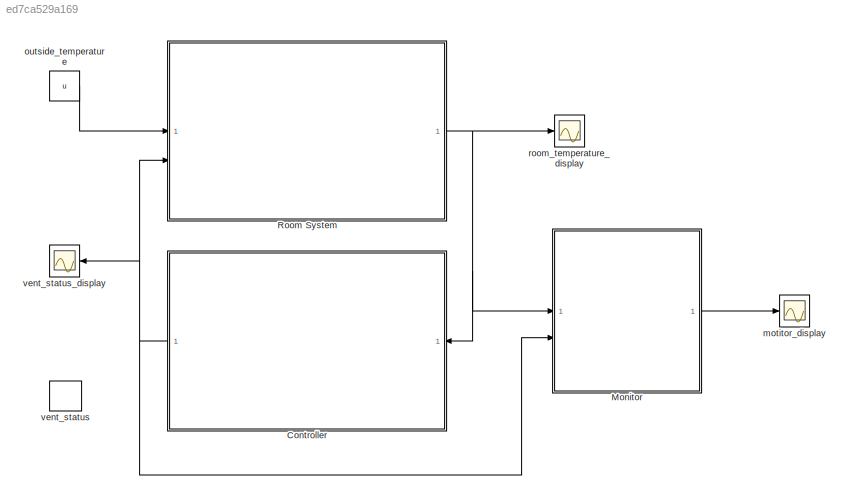
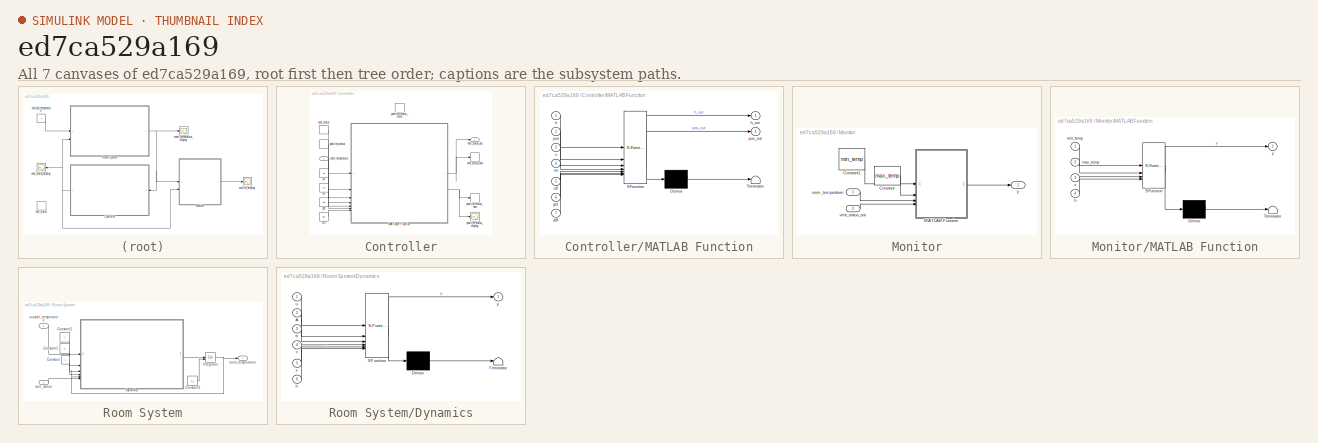
[diagram: thumbnail index - all 7 canvases of the model, root first then tree order]
MODEL slx_ed7ca529a169
KIND model
CONFIG AbsTol = auto
CONFIG EnableMultiTasking = off
CONFIG FixedStep = auto
CONFIG MaxStep = auto
CONFIG MinStep = auto
CONFIG RelTol = 1e-3
CONFIG SampleTimeConstraint = Unconstrained
CONFIG SolverName = VariableStepAuto
CONFIG StartTime = 0.0
CONFIG StopTime = 10
WORKSPACE source: mxarray member
WORKSPACE A = [0 0.3 0.4 0.3 0.3 0 0.5 0 0.4 0.5 0 0.3 ... (16 elements, 4x4)]
WORKSPACE b = [0.3 0.2 0.5 0.4]
WORKSPACE c = [9 7 11 7]
WORKSPACE diff = [1 1 1 1]
WORKSPACE get = [17 17 17 17]
WORKSPACE max_temp = 20
WORKSPACE min_temp = 15
WORKSPACE off = [20 20 20 20]
WORKSPACE on = [19 19 19 19]
WORKSPACE u = 6
WORKSPACE x_0 = [16.5 16.5 16.5 16.5]
BLOCK [SubSystem] Controller
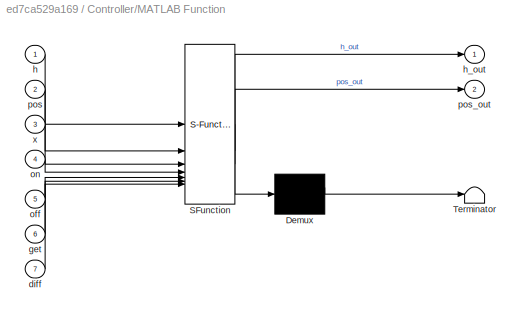
BLOCK [SubSystem] Controller/MATLAB Function
  ErrorFcn = Stateflow.Translate.translate
  PermitHierarchicalResolution = ExplicitOnly
  SFBlockType = MATLAB Function
  TreatAsAtomicUnit = on
BLOCK [Demux] Controller/MATLAB Function/ Demux 
  Outputs = 1
BLOCK [S-Function] Controller/MATLAB Function/ SFunction 
  EnableBusSupport = on
  FunctionName = sf_sfun
  PortCounts = [7 3]
  SFcnIsStateOwnerBlock = off
  SFunctionDeploymentMode = off
  Tag = Stateflow S-Function 1
BLOCK [Terminator] Controller/MATLAB Function/ Terminator 
BLOCK [Inport] Controller/MATLAB Function/diff
  Port = 7
BLOCK [Inport] Controller/MATLAB Function/get
  Port = 6
BLOCK [Inport] Controller/MATLAB Function/h
BLOCK [Outport] Controller/MATLAB Function/h_out
BLOCK [Inport] Controller/MATLAB Function/off
  Port = 5
BLOCK [Inport] Controller/MATLAB Function/on
  Port = 4
BLOCK [Inport] Controller/MATLAB Function/pos
  Port = 2
BLOCK [Outport] Controller/MATLAB Function/pos_out
  Port = 2
BLOCK [Inport] Controller/MATLAB Function/x
  Port = 3
BLOCK [Constant] Controller/diff
  Value = diff
BLOCK [Constant] Controller/get
  Value = get
BLOCK [Constant] Controller/off
  Value = off
BLOCK [Constant] Controller/on
  Value = on
BLOCK [DataStoreRead] Controller/position_status
  DataStoreName = pos
  IndexOptions = Index vector (dialog)
  Indices = 1
  OutputSizes = 1
BLOCK [Scope] Controller/position_status_display
  Floating = off
  NumInputPorts = 1
  ScopeSpecificationString = Simulink.scopes.TimeScopeBlockCfg('CurrentConfiguration', extmgr.ConfigurationSet(extmgr.Configuration('Core','General UI',true),extmgr.Configuration('Core','Source UI',true),extmgr.Configuration('Sources','WiredSimulink',true),extmgr.Configuration('Visuals','Time Domain',true,'SerializedDisplays',{struct('MinYLimReal','-0.125','MaxYLimReal','1.125','YLabelReal','','MinYLimMag','0.00000','MaxYLimM...<+1494ch>
BLOCK [DataStoreWrite] Controller/position_status_new
  DataStoreName = pos
  IndexOptions = Index vector (dialog)
  Indices = 1
  OutputSizes = 1
BLOCK [DataStoreMemory] Controller/position_status_store
  DataStoreName = pos
  InitialValue = [0;1;1;0]
  ShowAdditionalParam = off
  WriteAfterWriteMsg = warning
BLOCK [Inport] Controller/room_temperature
BLOCK [DataStoreRead] Controller/vent_status
  DataStoreName = h
  IndexOptions = Index vector (dialog)
  Indices = 1
  OutputSizes = 1
BLOCK [DataStoreWrite] Controller/vent_status_new
  DataStoreName = h
  IndexOptions = Index vector (dialog)
  Indices = 1
  OutputSizes = 1
BLOCK [Outport] Controller/vent_status_out
BLOCK [SubSystem] Monitor
BLOCK [Constant] Monitor/Constant
  Value = max_temp
BLOCK [Constant] Monitor/Constant1
  Value = min_temp
BLOCK [SubSystem] Monitor/MATLAB Function
  ErrorFcn = Stateflow.Translate.translate
  PermitHierarchicalResolution = ExplicitOnly
  SFBlockType = MATLAB Function
  TreatAsAtomicUnit = on
BLOCK [Demux] Monitor/MATLAB Function/ Demux 
  Outputs = 1
BLOCK [S-Function] Monitor/MATLAB Function/ SFunction 
  EnableBusSupport = on
  FunctionName = sf_sfun
  PortCounts = [4 2]
  SFcnIsStateOwnerBlock = off
  SFunctionDeploymentMode = off
  Tag = Stateflow S-Function 3
BLOCK [Terminator] Monitor/MATLAB Function/ Terminator 
BLOCK [Inport] Monitor/MATLAB Function/h
  Port = 4
BLOCK [Inport] Monitor/MATLAB Function/max_temp
  Port = 2
BLOCK [Inport] Monitor/MATLAB Function/min_temp
BLOCK [Inport] Monitor/MATLAB Function/x
  Port = 3
BLOCK [Outport] Monitor/MATLAB Function/y
BLOCK [Inport] Monitor/room_temperature
BLOCK [Inport] Monitor/vent_status_out
  Port = 2
BLOCK [Outport] Monitor/y
BLOCK [SubSystem] Room System
BLOCK [Constant] Room System/Constant
  Value = c
BLOCK [Constant] Room System/Constant1
  Value = b
BLOCK [Constant] Room System/Constant2
  Value = A
BLOCK [Constant] Room System/Constant3
  Value = x_0
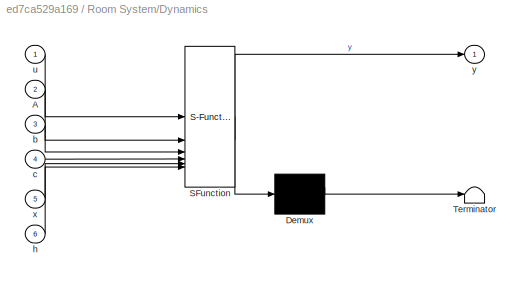
BLOCK [SubSystem] Room System/Dynamics
  ErrorFcn = Stateflow.Translate.translate
  PermitHierarchicalResolution = ExplicitOnly
  SFBlockType = MATLAB Function
  TreatAsAtomicUnit = on
BLOCK [Demux] Room System/Dynamics/ Demux 
  Outputs = 1
BLOCK [S-Function] Room System/Dynamics/ SFunction 
  EnableBusSupport = on
  FunctionName = sf_sfun
  PortCounts = [6 2]
  SFcnIsStateOwnerBlock = off
  SFunctionDeploymentMode = off
  Tag = Stateflow S-Function 2
BLOCK [Terminator] Room System/Dynamics/ Terminator 
BLOCK [Inport] Room System/Dynamics/A
  Port = 2
BLOCK [Inport] Room System/Dynamics/b
  Port = 3
BLOCK [Inport] Room System/Dynamics/c
  Port = 4
BLOCK [Inport] Room System/Dynamics/h
  Port = 6
BLOCK [Inport] Room System/Dynamics/u
BLOCK [Inport] Room System/Dynamics/x
  Port = 5
BLOCK [Outport] Room System/Dynamics/y
BLOCK [Integrator] Room System/Integrator
  InitialConditionSource = external
BLOCK [Inport] Room System/outside_temperature
BLOCK [Outport] Room System/room_temperature
BLOCK [Inport] Room System/vent_status
  Port = 2
BLOCK [Scope] motitor_display
  Floating = off
  NumInputPorts = 1
  ScopeSpecificationString = Simulink.scopes.TimeScopeBlockCfg('CurrentConfiguration', extmgr.ConfigurationSet(extmgr.Configuration('Core','General UI',true),extmgr.Configuration('Core','Source UI',true),extmgr.Configuration('Sources','WiredSimulink',true,'DataLoggingVariableName','ScopeData1'),extmgr.Configuration('Visuals','Time Domain',true,'SerializedDisplays',{struct('MinYLimReal','-1.00000','MaxYLimReal','1.00000','YLab...<+1517ch>
BLOCK [Constant] outside_temperature
  Value = u
BLOCK [Scope] room_temperature_display
  Floating = off
  NumInputPorts = 1
  ScopeSpecificationString = Simulink.scopes.TimeScopeBlockCfg('CurrentConfiguration', extmgr.ConfigurationSet(extmgr.Configuration('Core','General UI',true),extmgr.Configuration('Core','Source UI',true),extmgr.Configuration('Sources','WiredSimulink',true,'DataLoggingVariableName','ScopeData1'),extmgr.Configuration('Visuals','Time Domain',true,'SerializedDisplays',{struct('MinYLimReal','15.83123','MaxYLimReal','20.03281','YLa...<+1554ch>
BLOCK [DataStoreMemory] vent_status
  DataStoreName = h
  InitialValue = [0;0;0;0]
  ShowAdditionalParam = off
  WriteAfterWriteMsg = warning
BLOCK [Scope] vent_status_display
  Floating = off
  NumInputPorts = 1
  ScopeSpecificationString = Simulink.scopes.TimeScopeBlockCfg('CurrentConfiguration', extmgr.ConfigurationSet(extmgr.Configuration('Core','General UI',true),extmgr.Configuration('Core','Source UI',true),extmgr.Configuration('Sources','WiredSimulink',true,'DataLoggingVariableName','ScopeData2'),extmgr.Configuration('Visuals','Time Domain',true,'SerializedDisplays',{struct('MinYLimReal','-0.125','MaxYLimReal','1.125','YLabelRe...<+1536ch>
NET Controller/MATLAB Function:1 -> Controller/vent_status_new:1, Controller/vent_status_out:1
NET Controller/MATLAB Function:2 -> Controller/position_status_display:1, Controller/position_status_new:1
LINE Controller/diff:1 -> Controller/MATLAB Function:7
LINE Controller/get:1 -> Controller/MATLAB Function:6
LINE Controller/off:1 -> Controller/MATLAB Function:5
LINE Controller/on:1 -> Controller/MATLAB Function:4
LINE Controller/position_status:1 -> Controller/MATLAB Function:2
LINE Controller/room_temperature:1 -> Controller/MATLAB Function:3
LINE Controller/vent_status:1 -> Controller/MATLAB Function:1
NET Controller:1 -> Monitor:2, Room System:2, vent_status_display:1
LINE Monitor/Constant1:1 -> Monitor/MATLAB Function:1
LINE Monitor/Constant:1 -> Monitor/MATLAB Function:2
LINE Monitor/MATLAB Function:1 -> Monitor/y:1
LINE Monitor/room_temperature:1 -> Monitor/MATLAB Function:3
LINE Monitor/vent_status_out:1 -> Monitor/MATLAB Function:4
LINE Monitor:1 -> motitor_display:1
LINE Room System/Constant1:1 -> Room System/Dynamics:3
LINE Room System/Constant2:1 -> Room System/Dynamics:2
LINE Room System/Constant3:1 -> Room System/Integrator:2
LINE Room System/Constant:1 -> Room System/Dynamics:4
LINE Room System/Dynamics:1 -> Room System/Integrator:1
NET Room System/Integrator:1 -> Room System/Dynamics:5, Room System/room_temperature:1
LINE Room System/outside_temperature:1 -> Room System/Dynamics:1
LINE Room System/vent_status:1 -> Room System/Dynamics:6
NET Room System:1 -> Controller:1, Monitor:1, room_temperature_display:1
LINE outside_temperature:1 -> Room System:1
note: NET lines group one-source signal fan-out (src -> all destinations, sorted); 1:1 wires keep LINE
CHART Controller/MATLAB Function states=1 transitions=1
  STATE_LABEL 'eML_blk_kernel()'
  STATE_LABEL 'SCRIPT:\n% function that calculates how vent status should be altered\n\n% h - previous vent status\n% pos - previous vent open positions\n% x - current room temp\n% on - thresholds to open vents\n% off - thresholds to close vents\n% get - threshold to open a vent in a room & close in another\n% diff - threshold of temp diff between room for vent transfer\n\n% h_out - updated vent status\n% pos_out - keep tra...<+757ch>'
CHART Room System/Dynamics states=1 transitions=1
  STATE_LABEL 'eML_blk_kernel()'
  STATE_LABEL 'SCRIPT:\n% Calculate the room dynamics\n% according to given formula\n\n% u - outside temp\n% A - heat transfer factor between rooms\n% b - heat transfer factor from outside\n% c - heat transfer factor from heater\n\n% y - current temperate change rate\nfunction y = fcn(u, A, b, c, x, h)\n    y = h .* c + (u - x) .* b;\n    for i = 1:4\n        y(i) = y(i) + A(i,:) * (x - x(i));\n    end\nend'
CHART Monitor/MATLAB Function states=1 transitions=1
  STATE_LABEL 'eML_blk_kernel()'
  STATE_LABEL 'SCRIPT:\n% function to check if current system state satisfy safety requirements\n\nfunction y = fcn(min_temp, max_temp, x, h)\n\n    % check if temperature is in bounds \n    % and no more than 2 vents open at the same time\n    if any(x < min_temp) || any(x > max_temp) || sum(h==1) > 2\n        y = 1;\n    else\n        y = 0;\n    end\n    \nend\n\n'
CHART  states=0 transitions=0
CHART  states=0 transitions=0
CHART  states=0 transitions=0
